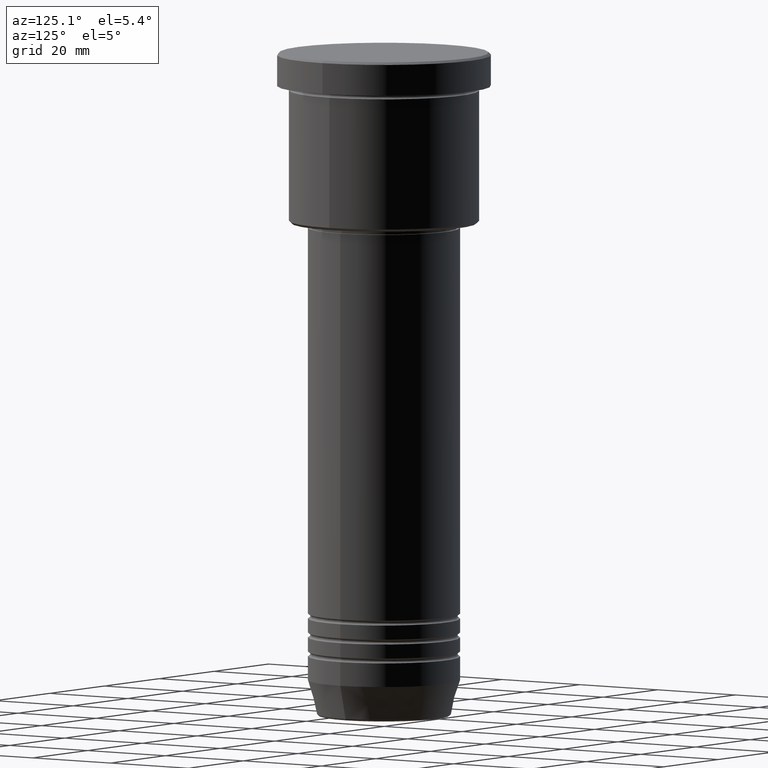
[diagram: clean part render]
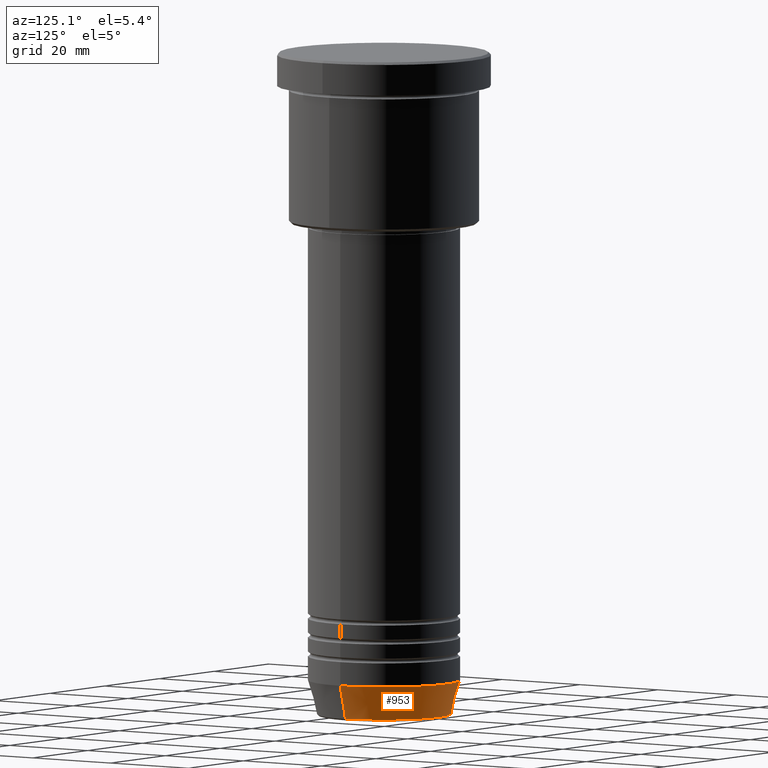
[diagram: same view with one face highlighted and labeled with its STEP entity id]
A machine part, auxiliary view. The second image highlights one B-rep face of the part: STEP entity #953.
In plain terms, the highlighted conical surface has half-angle 15 deg.
Its self-contained STEP definition (entity closure, byte-faithful):
#26 = EDGE_LOOP ( 'NONE', ( #704, #351, #840, #827 ) ) ;
#97 = DIRECTION ( 'NONE',  ( -0.000000000000000000, -0.000000000000000000, 1.000000000000000000 ) ) ;
#131 = CONICAL_SURFACE ( 'NONE', #849, 16.00000000000000000, 0.2617993877991500740 ) ;
#252 = CARTESIAN_POINT ( 'NONE',  ( -16.00000000000000000, 1.959434878635765131E-15, -132.5000000000000000 ) ) ;
#258 = CARTESIAN_POINT ( 'NONE',  ( -14.08968047592163053, 1.842461544110201663E-15, -139.6294095225512706 ) ) ;
#268 = DIRECTION ( 'NONE',  ( -0.000000000000000000, -0.000000000000000000, 1.000000000000000000 ) ) ;
#351 = ORIENTED_EDGE ( 'NONE', *, *, #385, .T. ) ;
#385 = EDGE_CURVE ( 'NONE', #690, #571, #879, .T. ) ;
#414 = VERTEX_POINT ( 'NONE', #980 ) ;
#473 = DIRECTION ( 'NONE',  ( -0.000000000000000000, -0.000000000000000000, 1.000000000000000000 ) ) ;
#516 = EDGE_CURVE ( 'NONE', #1111, #690, #830, .T. ) ;
#535 = AXIS2_PLACEMENT_3D ( 'NONE', #1071, #268, #1000 ) ;
#559 = CARTESIAN_POINT ( 'NONE',  ( 0.000000000000000000, 0.000000000000000000, -132.5000000000000000 ) ) ;
#562 = EDGE_CURVE ( 'NONE', #414, #571, #603, .T. ) ;
#566 = AXIS2_PLACEMENT_3D ( 'NONE', #727, #473, #808 ) ;
#571 = VERTEX_POINT ( 'NONE', #1177 ) ;
#575 = DIRECTION ( 'NONE',  ( 0.2588190451025213501, 0.000000000000000000, 0.9659258262890680902 ) ) ;
#603 = CIRCLE ( 'NONE', #566, 16.00000000000000000 ) ;
#690 = VERTEX_POINT ( 'NONE', #258 ) ;
#704 = ORIENTED_EDGE ( 'NONE', *, *, #516, .T. ) ;
#727 = CARTESIAN_POINT ( 'NONE',  ( 0.000000000000000000, 0.000000000000000000, -132.5000000000000000 ) ) ;
#791 = DIRECTION ( 'NONE',  ( -0.2588190451025213501, 3.169619151431772337E-17, 0.9659258262890680902 ) ) ;
#808 = DIRECTION ( 'NONE',  ( 1.000000000000000000, 0.000000000000000000, 0.000000000000000000 ) ) ;
#827 = ORIENTED_EDGE ( 'NONE', *, *, #1092, .F. ) ;
#830 = CIRCLE ( 'NONE', #535, 14.08968047592163053 ) ;
#840 = ORIENTED_EDGE ( 'NONE', *, *, #562, .F. ) ;
#849 = AXIS2_PLACEMENT_3D ( 'NONE', #559, #97, #936 ) ;
#879 = LINE ( 'NONE', #252, #1064 ) ;
#936 = DIRECTION ( 'NONE',  ( 1.000000000000000000, 0.000000000000000000, 0.000000000000000000 ) ) ;
#953 = ADVANCED_FACE ( 'NONE', ( #1110 ), #131, .T. ) ;
#980 = CARTESIAN_POINT ( 'NONE',  ( 16.00000000000000000, 0.000000000000000000, -132.5000000000000000 ) ) ;
#1000 = DIRECTION ( 'NONE',  ( 1.000000000000000000, 0.000000000000000000, 0.000000000000000000 ) ) ;
#1053 = LINE ( 'NONE', #1123, #1183 ) ;
#1064 = VECTOR ( 'NONE', #791, 1000.000000000000000 ) ;
#1071 = CARTESIAN_POINT ( 'NONE',  ( 0.000000000000000000, 0.000000000000000000, -139.6294095225512706 ) ) ;
#1092 = EDGE_CURVE ( 'NONE', #1111, #414, #1053, .T. ) ;
#1110 = FACE_OUTER_BOUND ( 'NONE', #26, .T. ) ;
#1111 = VERTEX_POINT ( 'NONE', #1131 ) ;
#1123 = CARTESIAN_POINT ( 'NONE',  ( 16.00000000000000000, 0.000000000000000000, -132.5000000000000000 ) ) ;
#1131 = CARTESIAN_POINT ( 'NONE',  ( 14.08968047592163053, 0.000000000000000000, -139.6294095225512706 ) ) ;
#1177 = CARTESIAN_POINT ( 'NONE',  ( -16.00000000000000000, 1.959434878635765131E-15, -132.5000000000000000 ) ) ;
#1183 = VECTOR ( 'NONE', #575, 1000.000000000000000 ) ;